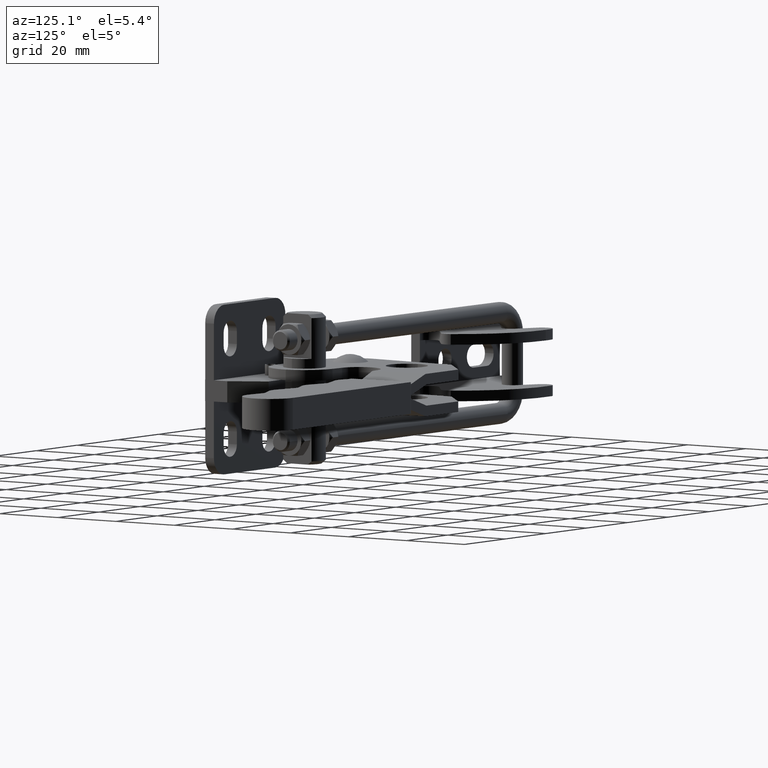
[diagram: clean part render]
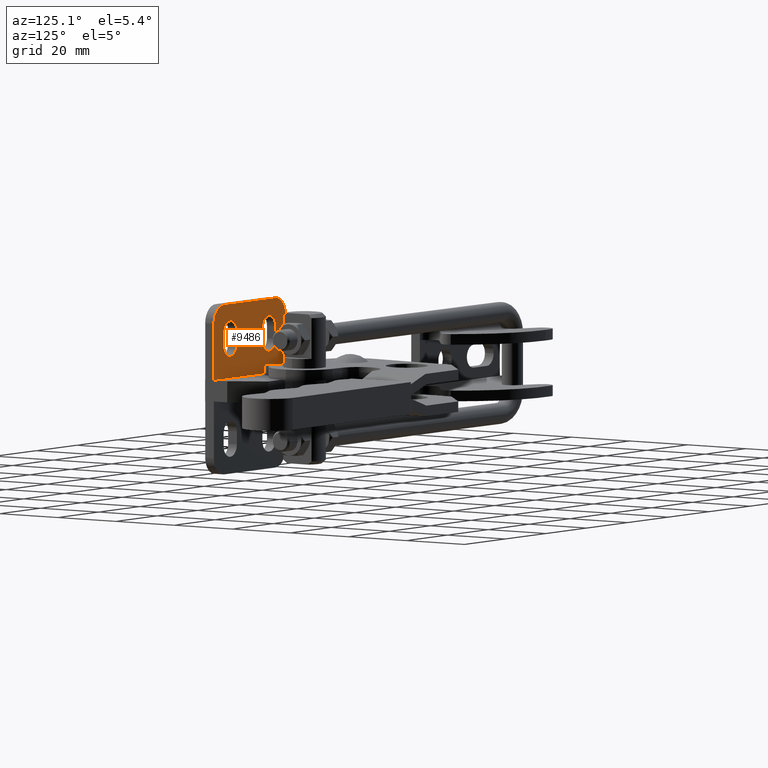
[diagram: same view with one face highlighted and labeled with its STEP entity id]
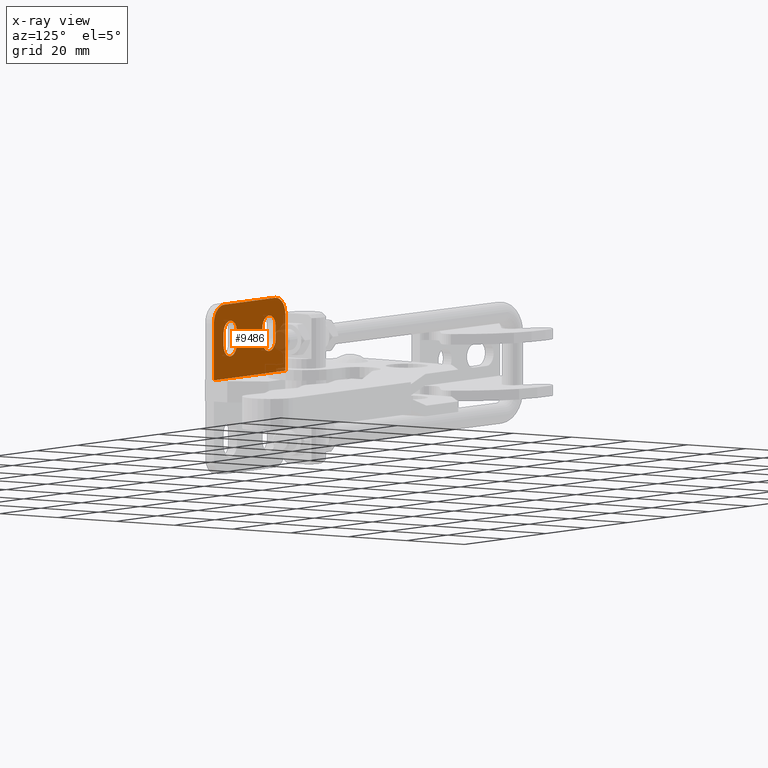
[diagram: x-ray of the same camera — body ghosted, the highlighted face saturated]
A machine part, auxiliary view. The second image highlights one B-rep face of the part: STEP entity #9486.
The next image is the same camera in x-ray: the body ghosted, the highlighted face saturated — about 6% of this face is hidden behind the body in this view.
In plain terms, the highlighted planar face has unit normal (-0, -1, 0).
Its self-contained STEP definition (entity closure, byte-faithful):
#114 = CARTESIAN_POINT ( 'NONE',  ( -24.41102501600735800, 3.000000000000000900, 12.40000000000029900 ) ) ;
#190 = DIRECTION ( 'NONE',  ( 0.0000000000000000000, -1.000000000000000000, 5.525634816903321600E-018 ) ) ;
#246 = VECTOR ( 'NONE', #7273, 1000.000000000000000 ) ;
#288 = DIRECTION ( 'NONE',  ( 0.0000000000000000000, -1.000000000000000000, 5.525634816903321600E-018 ) ) ;
#368 = DIRECTION ( 'NONE',  ( 0.0000000000000000000, -1.000000000000000000, 5.525634816903321600E-018 ) ) ;
#636 = DIRECTION ( 'NONE',  ( -1.239088197126300900E-016, -9.860761315262647600E-032, -1.000000000000000000 ) ) ;
#677 = CARTESIAN_POINT ( 'NONE',  ( -35.66102501600767000, 3.000000000000000900, 19.00000000000018500 ) ) ;
#824 = EDGE_CURVE ( 'NONE', #6803, #7176, #2995, .T. ) ;
#917 = CARTESIAN_POINT ( 'NONE',  ( -35.66102501600772700, 3.000000000000000900, 2.999999999999537300 ) ) ;
#927 = EDGE_CURVE ( 'NONE', #6850, #7038, #7560, .T. ) ;
#1006 = VECTOR ( 'NONE', #9343, 1000.000000000000000 ) ;
#1061 = FACE_BOUND ( 'NONE', #9465, .T. ) ;
#1078 = ORIENTED_EDGE ( 'NONE', *, *, #4676, .F. ) ;
#1110 = CIRCLE ( 'NONE', #6608, 3.250000000000086200 ) ;
#1150 = CARTESIAN_POINT ( 'NONE',  ( -30.91102501600730400, 3.000000000000000900, 16.00000000000023400 ) ) ;
#1165 = DIRECTION ( 'NONE',  ( 1.239088197126248700E-016, 9.860761315262662900E-032, 1.000000000000000000 ) ) ;
#1314 = ORIENTED_EDGE ( 'NONE', *, *, #7696, .T. ) ;
#1418 = CIRCLE ( 'NONE', #8294, 4.999999999999948500 ) ;
#1452 = VERTEX_POINT ( 'NONE', #3011 ) ;
#1522 = CIRCLE ( 'NONE', #6546, 3.250000000000086200 ) ;
#1656 = VECTOR ( 'NONE', #6392, 1000.000000000000000 ) ;
#1787 = DIRECTION ( 'NONE',  ( -1.000000000000000000, 2.775557561562891400E-017, 7.081151559887774300E-017 ) ) ;
#1852 = CARTESIAN_POINT ( 'NONE',  ( -0.6610250160080863900, 3.000000000000000000, 2.999999999999539000 ) ) ;
#1885 = CARTESIAN_POINT ( 'NONE',  ( -35.66102501600767000, 3.000000000000000900, 19.00000000000018500 ) ) ;
#1975 = CARTESIAN_POINT ( 'NONE',  ( -5.661025016007977600, 3.000000000000000000, 24.00000000000024200 ) ) ;
#2089 = CARTESIAN_POINT ( 'NONE',  ( -30.66102501600766700, 3.000000000000000900, 24.00000000000024200 ) ) ;
#2187 = ORIENTED_EDGE ( 'NONE', *, *, #9536, .T. ) ;
#2224 = EDGE_CURVE ( 'NONE', #2906, #6803, #4928, .T. ) ;
#2246 = CARTESIAN_POINT ( 'NONE',  ( -0.6610250160080288800, 3.000000000000000000, 19.00000000000023400 ) ) ;
#2398 = ORIENTED_EDGE ( 'NONE', *, *, #6084, .F. ) ;
#2468 = LINE ( 'NONE', #2089, #246 ) ;
#2499 = CARTESIAN_POINT ( 'NONE',  ( -11.91102501600806600, 3.000000000000000400, 16.00000000000023400 ) ) ;
#2624 = CARTESIAN_POINT ( 'NONE',  ( -0.6610250160080843900, 3.000000000000000000, 19.00000000000023400 ) ) ;
#2649 = CARTESIAN_POINT ( 'NONE',  ( -35.66102501600772700, 3.000000000000000900, 2.999999999999537300 ) ) ;
#2865 = DIRECTION ( 'NONE',  ( 1.000000000000000000, -2.775557561562891400E-017, 5.309730411375259600E-017 ) ) ;
#2906 = VERTEX_POINT ( 'NONE', #3268 ) ;
#2939 = ORIENTED_EDGE ( 'NONE', *, *, #5956, .T. ) ;
#2995 = LINE ( 'NONE', #6197, #1006 ) ;
#3011 = CARTESIAN_POINT ( 'NONE',  ( -5.411025016008005100, 3.000000000000000000, 16.00000000000023400 ) ) ;
#3027 = VERTEX_POINT ( 'NONE', #9485 ) ;
#3053 = FACE_OUTER_BOUND ( 'NONE', #3626, .T. ) ;
#3113 = ORIENTED_EDGE ( 'NONE', *, *, #824, .T. ) ;
#3175 = VECTOR ( 'NONE', #1165, 1000.000000000000000 ) ;
#3234 = VECTOR ( 'NONE', #636, 1000.000000000000000 ) ;
#3250 = CARTESIAN_POINT ( 'NONE',  ( -30.91102501600730400, 3.000000000000000900, 16.00000000000023400 ) ) ;
#3268 = CARTESIAN_POINT ( 'NONE',  ( -30.91102501600730800, 3.000000000000000900, 12.40000000000029900 ) ) ;
#3398 = DIRECTION ( 'NONE',  ( 0.0000000000000000000, -1.000000000000000000, 5.525634816903321600E-018 ) ) ;
#3555 = ORIENTED_EDGE ( 'NONE', *, *, #3561, .F. ) ;
#3557 = VECTOR ( 'NONE', #2865, 1000.000000000000000 ) ;
#3561 = EDGE_CURVE ( 'NONE', #4529, #6850, #5503, .T. ) ;
#3626 = EDGE_LOOP ( 'NONE', ( #2398, #1078, #8214, #3738, #7792, #3555 ) ) ;
#3738 = ORIENTED_EDGE ( 'NONE', *, *, #3932, .F. ) ;
#3804 = EDGE_CURVE ( 'NONE', #6615, #8702, #1418, .T. ) ;
#3813 = VERTEX_POINT ( 'NONE', #3250 ) ;
#3932 = EDGE_CURVE ( 'NONE', #7038, #6615, #5140, .T. ) ;
#4037 = DIRECTION ( 'NONE',  ( 0.0000000000000000000, -1.000000000000000000, 5.525634816903321600E-018 ) ) ;
#4061 = DIRECTION ( 'NONE',  ( 1.239088197126300900E-016, 9.860761315262647600E-032, 1.000000000000000000 ) ) ;
#4427 = VERTEX_POINT ( 'NONE', #2499 ) ;
#4468 = EDGE_LOOP ( 'NONE', ( #8359, #1314, #8727, #2939 ) ) ;
#4529 = VERTEX_POINT ( 'NONE', #1885 ) ;
#4566 = AXIS2_PLACEMENT_3D ( 'NONE', #4824, #368, #5592 ) ;
#4578 = DIRECTION ( 'NONE',  ( -1.000000000000000000, 0.0000000000000000000, 0.0000000000000000000 ) ) ;
#4636 = CARTESIAN_POINT ( 'NONE',  ( -30.66102501600766700, 3.000000000000000900, 19.00000000000023800 ) ) ;
#4676 = EDGE_CURVE ( 'NONE', #8702, #9506, #2468, .T. ) ;
#4721 = PLANE ( 'NONE',  #5911 ) ;
#4737 = CARTESIAN_POINT ( 'NONE',  ( -5.661025016007977600, 3.000000000000000000, 19.00000000000023400 ) ) ;
#4796 = CARTESIAN_POINT ( 'NONE',  ( -27.66102501600733300, 3.000000000000000900, 12.40000000000029900 ) ) ;
#4824 = CARTESIAN_POINT ( 'NONE',  ( -27.66102501600732900, 3.000000000000000900, 16.00000000000023400 ) ) ;
#4928 = CIRCLE ( 'NONE', #7082, 3.249999999999975100 ) ;
#5140 = LINE ( 'NONE', #2624, #3175 ) ;
#5401 = DIRECTION ( 'NONE',  ( -1.000000000000000000, 0.0000000000000000000, 0.0000000000000000000 ) ) ;
#5488 = CARTESIAN_POINT ( 'NONE',  ( -30.66102501600766700, 3.000000000000000900, 19.00000000000023800 ) ) ;
#5503 = LINE ( 'NONE', #677, #9597 ) ;
#5505 = DIRECTION ( 'NONE',  ( -1.000000000000000000, 0.0000000000000000000, 0.0000000000000000000 ) ) ;
#5542 = CARTESIAN_POINT ( 'NONE',  ( -5.411025016007894100, 3.000000000000000000, 16.00000000000023400 ) ) ;
#5592 = DIRECTION ( 'NONE',  ( -1.000000000000000000, 0.0000000000000000000, 0.0000000000000000000 ) ) ;
#5820 = EDGE_CURVE ( 'NONE', #1452, #4427, #1522, .T. ) ;
#5911 = AXIS2_PLACEMENT_3D ( 'NONE', #5488, #9287, #1787 ) ;
#5926 = DIRECTION ( 'NONE',  ( -3.593355771666104700E-015, -2.311115933268569400E-033, -1.000000000000000000 ) ) ;
#5956 = EDGE_CURVE ( 'NONE', #4427, #3027, #9271, .T. ) ;
#6084 = EDGE_CURVE ( 'NONE', #9506, #4529, #6295, .T. ) ;
#6197 = CARTESIAN_POINT ( 'NONE',  ( -24.41102501600735400, 3.000000000000000900, 16.00000000000023400 ) ) ;
#6295 = CIRCLE ( 'NONE', #6966, 5.000000000000000900 ) ;
#6392 = DIRECTION ( 'NONE',  ( -1.239088197126300900E-016, -9.860761315262647600E-032, -1.000000000000000000 ) ) ;
#6546 = AXIS2_PLACEMENT_3D ( 'NONE', #7900, #3398, #8645 ) ;
#6608 = AXIS2_PLACEMENT_3D ( 'NONE', #8525, #4037, #9362 ) ;
#6615 = VERTEX_POINT ( 'NONE', #2246 ) ;
#6785 = VERTEX_POINT ( 'NONE', #9155 ) ;
#6803 = VERTEX_POINT ( 'NONE', #114 ) ;
#6850 = VERTEX_POINT ( 'NONE', #917 ) ;
#6966 = AXIS2_PLACEMENT_3D ( 'NONE', #4636, #190, #5401 ) ;
#6983 = VECTOR ( 'NONE', #4061, 1000.000000000000000 ) ;
#7038 = VERTEX_POINT ( 'NONE', #1852 ) ;
#7082 = AXIS2_PLACEMENT_3D ( 'NONE', #4796, #8446, #4578 ) ;
#7176 = VERTEX_POINT ( 'NONE', #7199 ) ;
#7199 = CARTESIAN_POINT ( 'NONE',  ( -24.41102501600735400, 3.000000000000000900, 16.00000000000023400 ) ) ;
#7273 = DIRECTION ( 'NONE',  ( -1.000000000000000000, 2.775557561562891400E-017, 7.081151559887774300E-017 ) ) ;
#7384 = CARTESIAN_POINT ( 'NONE',  ( -11.91102501600806600, 3.000000000000000400, 16.00000000000023400 ) ) ;
#7386 = LINE ( 'NONE', #1150, #1656 ) ;
#7560 = LINE ( 'NONE', #2649, #3557 ) ;
#7696 = EDGE_CURVE ( 'NONE', #6785, #1452, #9244, .T. ) ;
#7792 = ORIENTED_EDGE ( 'NONE', *, *, #927, .F. ) ;
#7900 = CARTESIAN_POINT ( 'NONE',  ( -8.661025016008091300, 3.000000000000000400, 16.00000000000023400 ) ) ;
#8214 = ORIENTED_EDGE ( 'NONE', *, *, #3804, .F. ) ;
#8294 = AXIS2_PLACEMENT_3D ( 'NONE', #4737, #288, #5505 ) ;
#8359 = ORIENTED_EDGE ( 'NONE', *, *, #8559, .T. ) ;
#8377 = ORIENTED_EDGE ( 'NONE', *, *, #9224, .T. ) ;
#8446 = DIRECTION ( 'NONE',  ( 0.0000000000000000000, -1.000000000000000000, 5.525634816903321600E-018 ) ) ;
#8525 = CARTESIAN_POINT ( 'NONE',  ( -8.661025016008091300, 3.000000000000000400, 12.40000000000029700 ) ) ;
#8559 = EDGE_CURVE ( 'NONE', #3027, #6785, #1110, .T. ) ;
#8645 = DIRECTION ( 'NONE',  ( -1.000000000000000000, 0.0000000000000000000, 0.0000000000000000000 ) ) ;
#8674 = CIRCLE ( 'NONE', #4566, 3.249999999999975100 ) ;
#8702 = VERTEX_POINT ( 'NONE', #1975 ) ;
#8727 = ORIENTED_EDGE ( 'NONE', *, *, #5820, .T. ) ;
#8797 = FACE_BOUND ( 'NONE', #4468, .T. ) ;
#9130 = ORIENTED_EDGE ( 'NONE', *, *, #2224, .T. ) ;
#9155 = CARTESIAN_POINT ( 'NONE',  ( -5.411025016007894100, 3.000000000000000000, 12.40000000000029700 ) ) ;
#9224 = EDGE_CURVE ( 'NONE', #7176, #3813, #8674, .T. ) ;
#9244 = LINE ( 'NONE', #5542, #6983 ) ;
#9271 = LINE ( 'NONE', #7384, #3234 ) ;
#9287 = DIRECTION ( 'NONE',  ( -2.775557561562891400E-017, -1.000000000000000000, 5.525634816903323900E-018 ) ) ;
#9325 = CARTESIAN_POINT ( 'NONE',  ( -30.66102501600766700, 3.000000000000000900, 24.00000000000024200 ) ) ;
#9343 = DIRECTION ( 'NONE',  ( 1.239088197126300900E-016, 9.860761315262647600E-032, 1.000000000000000000 ) ) ;
#9362 = DIRECTION ( 'NONE',  ( -1.000000000000000000, 0.0000000000000000000, 0.0000000000000000000 ) ) ;
#9465 = EDGE_LOOP ( 'NONE', ( #9130, #3113, #8377, #2187 ) ) ;
#9485 = CARTESIAN_POINT ( 'NONE',  ( -11.91102501600806600, 3.000000000000000400, 12.40000000000029700 ) ) ;
#9486 = ADVANCED_FACE ( 'NONE', ( #8797, #3053, #1061 ), #4721, .F. ) ;
#9506 = VERTEX_POINT ( 'NONE', #9325 ) ;
#9536 = EDGE_CURVE ( 'NONE', #3813, #2906, #7386, .T. ) ;
#9597 = VECTOR ( 'NONE', #5926, 1000.000000000000000 ) ;